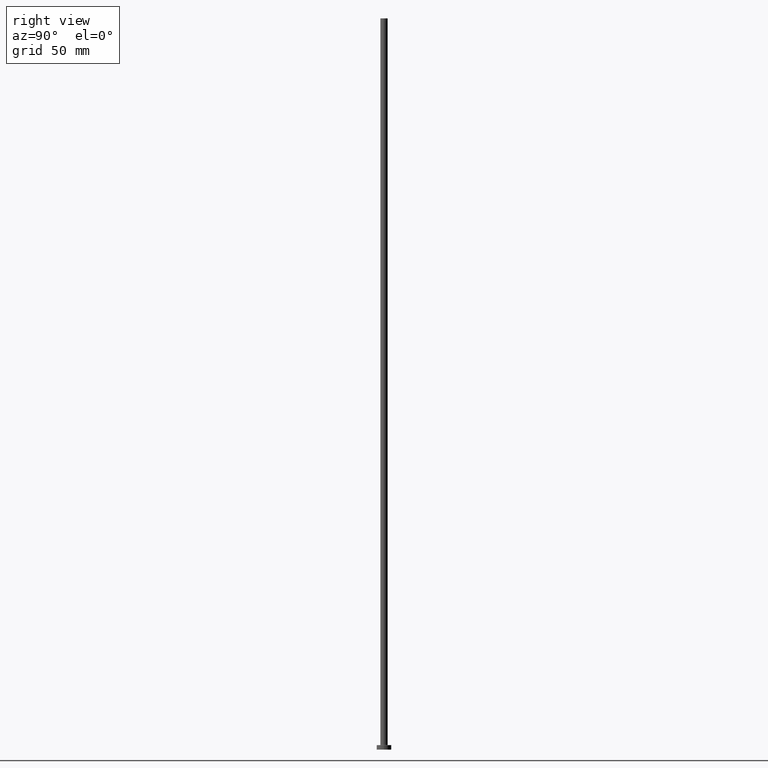
[diagram: clean part render]
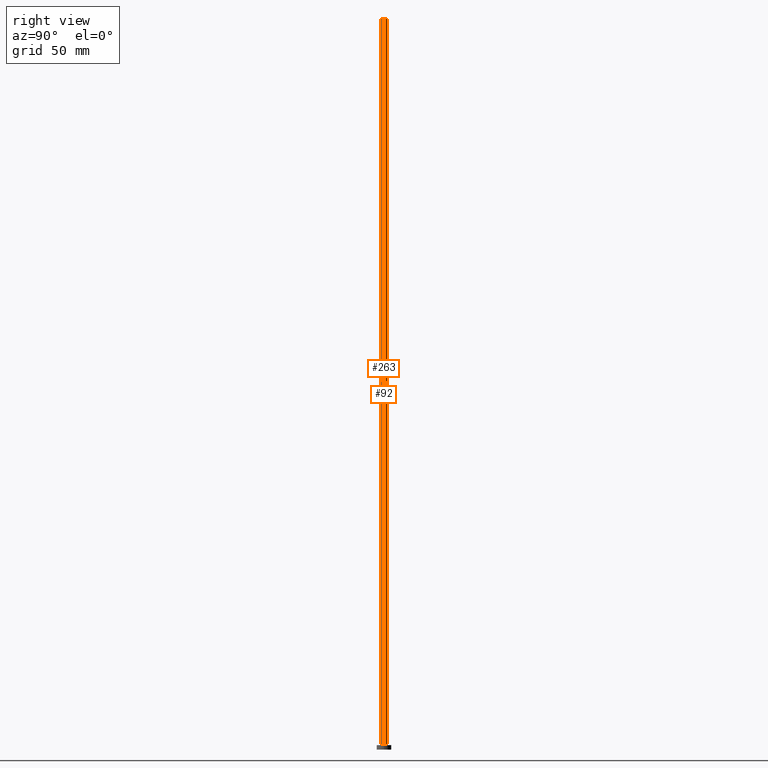
[diagram: same view with one multi-face feature highlighted, each face labeled with its STEP entity id]
A machine part, right view. The highlighted faces form ONE feature: a constant-radius fillet chain: 2 tangent blend faces with common blend radius 2.5 mm. The faces share edges in the B-rep.
Their STEP definitions:
[1] entity #263 (Cylinder):
#2 = ORIENTED_EDGE ( 'NONE', *, *, #223, .F. ) ;
#24 = CARTESIAN_POINT ( 'NONE',  ( -2.500000000000000000, 0.000000000000000000, 500.0000000000000000 ) ) ;
#38 = CARTESIAN_POINT ( 'NONE',  ( 2.500000000000000000, 3.061616997868382648E-16, 3.300000000000025135 ) ) ;
#64 = CARTESIAN_POINT ( 'NONE',  ( 2.500000000000000000, 3.061616997868382648E-16, 500.0000000000000000 ) ) ;
#68 = ORIENTED_EDGE ( 'NONE', *, *, #328, .T. ) ;
#93 = DIRECTION ( 'NONE',  ( 0.000000000000000000, 0.000000000000000000, 1.000000000000000000 ) ) ;
#95 = AXIS2_PLACEMENT_3D ( 'NONE', #379, #286, #111 ) ;
#111 = DIRECTION ( 'NONE',  ( -1.000000000000000000, 0.000000000000000000, 0.000000000000000000 ) ) ;
#116 = EDGE_CURVE ( 'NONE', #161, #146, #372, .T. ) ;
#146 = VERTEX_POINT ( 'NONE', #445 ) ;
#147 = FACE_OUTER_BOUND ( 'NONE', #289, .T. ) ;
#151 = DIRECTION ( 'NONE',  ( 0.000000000000000000, 0.000000000000000000, 1.000000000000000000 ) ) ;
#153 = VECTOR ( 'NONE', #420, 1000.000000000000000 ) ;
#161 = VERTEX_POINT ( 'NONE', #24 ) ;
#223 = EDGE_CURVE ( 'NONE', #161, #392, #282, .T. ) ;
#243 = DIRECTION ( 'NONE',  ( 1.000000000000000000, 0.000000000000000000, 0.000000000000000000 ) ) ;
#263 = ADVANCED_FACE ( 'NONE', ( #147 ), #324, .T. ) ;
#272 = VERTEX_POINT ( 'NONE', #38 ) ;
#273 = CIRCLE ( 'NONE', #402, 2.500000000000000000 ) ;
#277 = DIRECTION ( 'NONE',  ( -0.000000000000000000, -0.000000000000000000, -1.000000000000000000 ) ) ;
#282 = CIRCLE ( 'NONE', #304, 2.500000000000000000 ) ;
#286 = DIRECTION ( 'NONE',  ( -0.000000000000000000, -0.000000000000000000, -1.000000000000000000 ) ) ;
#289 = EDGE_LOOP ( 'NONE', ( #393, #2, #334, #68 ) ) ;
#291 = LINE ( 'NONE', #64, #153 ) ;
#304 = AXIS2_PLACEMENT_3D ( 'NONE', #407, #93, #243 ) ;
#305 = CARTESIAN_POINT ( 'NONE',  ( -2.500000000000000000, 0.000000000000000000, 500.0000000000000000 ) ) ;
#309 = VECTOR ( 'NONE', #277, 1000.000000000000000 ) ;
#324 = CYLINDRICAL_SURFACE ( 'NONE', #95, 2.500000000000000000 ) ;
#328 = EDGE_CURVE ( 'NONE', #146, #272, #273, .T. ) ;
#331 = CARTESIAN_POINT ( 'NONE',  ( 2.500000000000000000, 3.061616997868382648E-16, 500.0000000000000000 ) ) ;
#333 = EDGE_CURVE ( 'NONE', #392, #272, #291, .T. ) ;
#334 = ORIENTED_EDGE ( 'NONE', *, *, #116, .T. ) ;
#354 = DIRECTION ( 'NONE',  ( 1.000000000000000000, 0.000000000000000000, 0.000000000000000000 ) ) ;
#372 = LINE ( 'NONE', #305, #309 ) ;
#379 = CARTESIAN_POINT ( 'NONE',  ( 0.000000000000000000, 0.000000000000000000, 500.0000000000000000 ) ) ;
#392 = VERTEX_POINT ( 'NONE', #331 ) ;
#393 = ORIENTED_EDGE ( 'NONE', *, *, #333, .F. ) ;
#402 = AXIS2_PLACEMENT_3D ( 'NONE', #426, #151, #354 ) ;
#407 = CARTESIAN_POINT ( 'NONE',  ( 0.000000000000000000, 0.000000000000000000, 500.0000000000000000 ) ) ;
#420 = DIRECTION ( 'NONE',  ( -0.000000000000000000, -0.000000000000000000, -1.000000000000000000 ) ) ;
#426 = CARTESIAN_POINT ( 'NONE',  ( 0.000000000000000000, 0.000000000000000000, 3.300000000000025135 ) ) ;
#445 = CARTESIAN_POINT ( 'NONE',  ( -2.500000000000000000, 0.000000000000000000, 3.300000000000025135 ) ) ;
[2] entity #92 (Cylinder):
#13 = AXIS2_PLACEMENT_3D ( 'NONE', #53, #59, #412 ) ;
#24 = CARTESIAN_POINT ( 'NONE',  ( -2.500000000000000000, 0.000000000000000000, 500.0000000000000000 ) ) ;
#33 = ORIENTED_EDGE ( 'NONE', *, *, #333, .T. ) ;
#38 = CARTESIAN_POINT ( 'NONE',  ( 2.500000000000000000, 3.061616997868382648E-16, 3.300000000000025135 ) ) ;
#53 = CARTESIAN_POINT ( 'NONE',  ( 0.000000000000000000, 0.000000000000000000, 500.0000000000000000 ) ) ;
#59 = DIRECTION ( 'NONE',  ( -0.000000000000000000, -0.000000000000000000, -1.000000000000000000 ) ) ;
#62 = DIRECTION ( 'NONE',  ( 1.000000000000000000, 0.000000000000000000, 0.000000000000000000 ) ) ;
#64 = CARTESIAN_POINT ( 'NONE',  ( 2.500000000000000000, 3.061616997868382648E-16, 500.0000000000000000 ) ) ;
#74 = CIRCLE ( 'NONE', #248, 2.500000000000000000 ) ;
#92 = ADVANCED_FACE ( 'NONE', ( #411 ), #211, .T. ) ;
#116 = EDGE_CURVE ( 'NONE', #161, #146, #372, .T. ) ;
#146 = VERTEX_POINT ( 'NONE', #445 ) ;
#153 = VECTOR ( 'NONE', #420, 1000.000000000000000 ) ;
#161 = VERTEX_POINT ( 'NONE', #24 ) ;
#164 = ORIENTED_EDGE ( 'NONE', *, *, #396, .F. ) ;
#185 = EDGE_CURVE ( 'NONE', #272, #146, #198, .T. ) ;
#187 = AXIS2_PLACEMENT_3D ( 'NONE', #441, #378, #62 ) ;
#198 = CIRCLE ( 'NONE', #187, 2.500000000000000000 ) ;
#200 = EDGE_LOOP ( 'NONE', ( #164, #33, #323, #293 ) ) ;
#211 = CYLINDRICAL_SURFACE ( 'NONE', #13, 2.500000000000000000 ) ;
#248 = AXIS2_PLACEMENT_3D ( 'NONE', #367, #364, #427 ) ;
#272 = VERTEX_POINT ( 'NONE', #38 ) ;
#277 = DIRECTION ( 'NONE',  ( -0.000000000000000000, -0.000000000000000000, -1.000000000000000000 ) ) ;
#291 = LINE ( 'NONE', #64, #153 ) ;
#293 = ORIENTED_EDGE ( 'NONE', *, *, #116, .F. ) ;
#305 = CARTESIAN_POINT ( 'NONE',  ( -2.500000000000000000, 0.000000000000000000, 500.0000000000000000 ) ) ;
#309 = VECTOR ( 'NONE', #277, 1000.000000000000000 ) ;
#323 = ORIENTED_EDGE ( 'NONE', *, *, #185, .T. ) ;
#331 = CARTESIAN_POINT ( 'NONE',  ( 2.500000000000000000, 3.061616997868382648E-16, 500.0000000000000000 ) ) ;
#333 = EDGE_CURVE ( 'NONE', #392, #272, #291, .T. ) ;
#364 = DIRECTION ( 'NONE',  ( 0.000000000000000000, 0.000000000000000000, 1.000000000000000000 ) ) ;
#367 = CARTESIAN_POINT ( 'NONE',  ( 0.000000000000000000, 0.000000000000000000, 500.0000000000000000 ) ) ;
#372 = LINE ( 'NONE', #305, #309 ) ;
#378 = DIRECTION ( 'NONE',  ( 0.000000000000000000, 0.000000000000000000, 1.000000000000000000 ) ) ;
#392 = VERTEX_POINT ( 'NONE', #331 ) ;
#396 = EDGE_CURVE ( 'NONE', #392, #161, #74, .T. ) ;
#411 = FACE_OUTER_BOUND ( 'NONE', #200, .T. ) ;
#412 = DIRECTION ( 'NONE',  ( -1.000000000000000000, 0.000000000000000000, 0.000000000000000000 ) ) ;
#420 = DIRECTION ( 'NONE',  ( -0.000000000000000000, -0.000000000000000000, -1.000000000000000000 ) ) ;
#427 = DIRECTION ( 'NONE',  ( 1.000000000000000000, 0.000000000000000000, 0.000000000000000000 ) ) ;
#441 = CARTESIAN_POINT ( 'NONE',  ( 0.000000000000000000, 0.000000000000000000, 3.300000000000025135 ) ) ;
#445 = CARTESIAN_POINT ( 'NONE',  ( -2.500000000000000000, 0.000000000000000000, 3.300000000000025135 ) ) ;